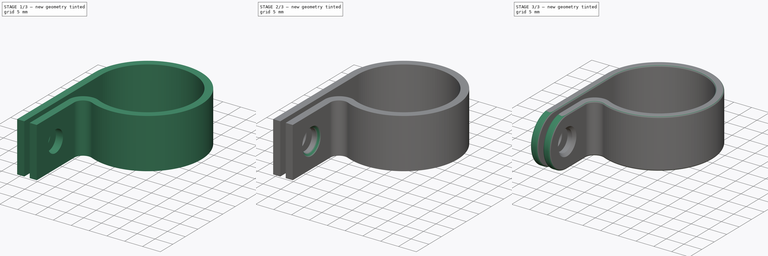
[diagram: build sequence overview — one tinted view per stage of 3, left to right]
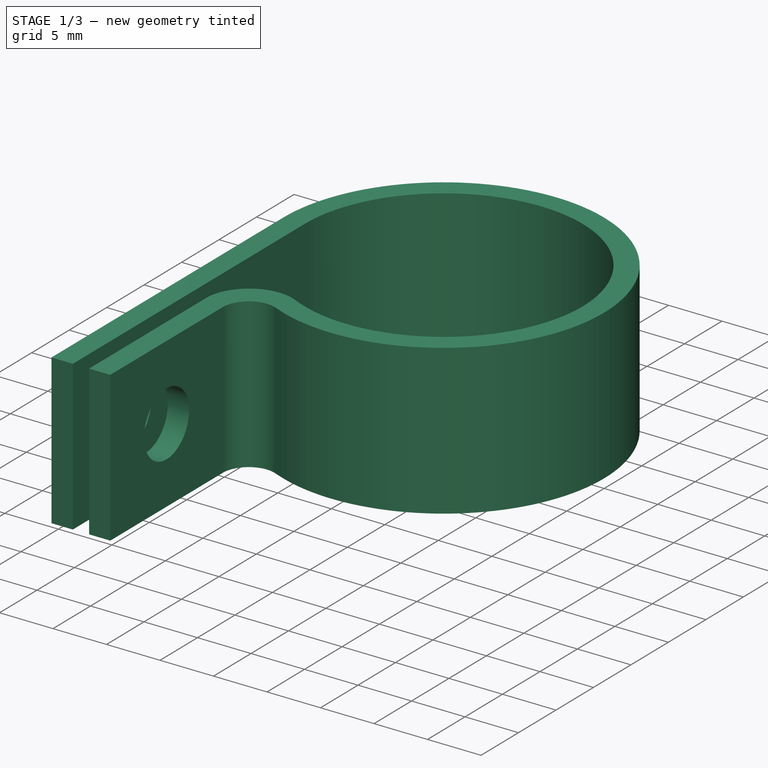
[diagram: stage 1 of 3 — iso view after this stage's code; geometry added in this stage tinted green]
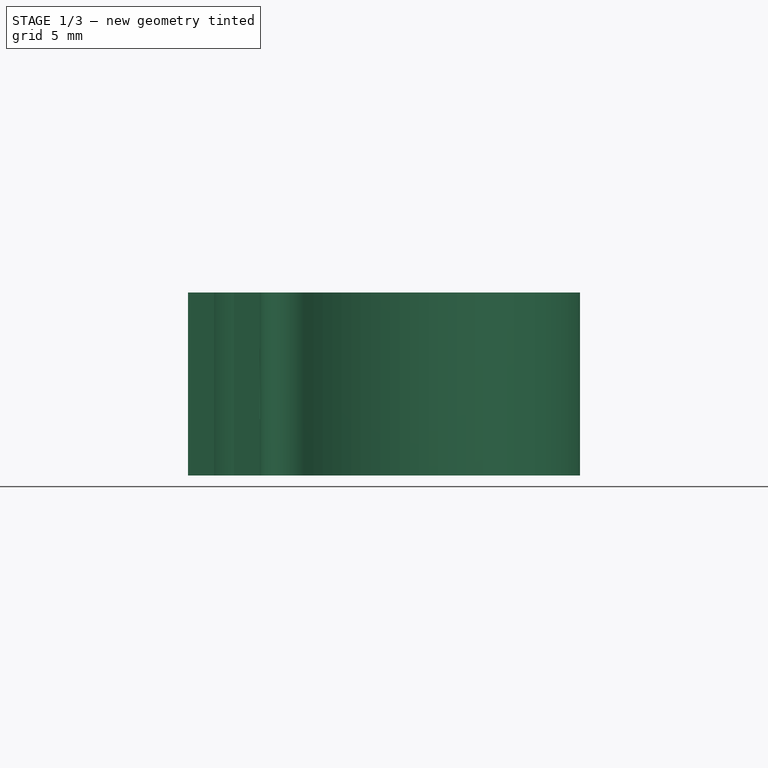
[diagram: stage 1 of 3 — front view after this stage's code; geometry added in this stage tinted green]
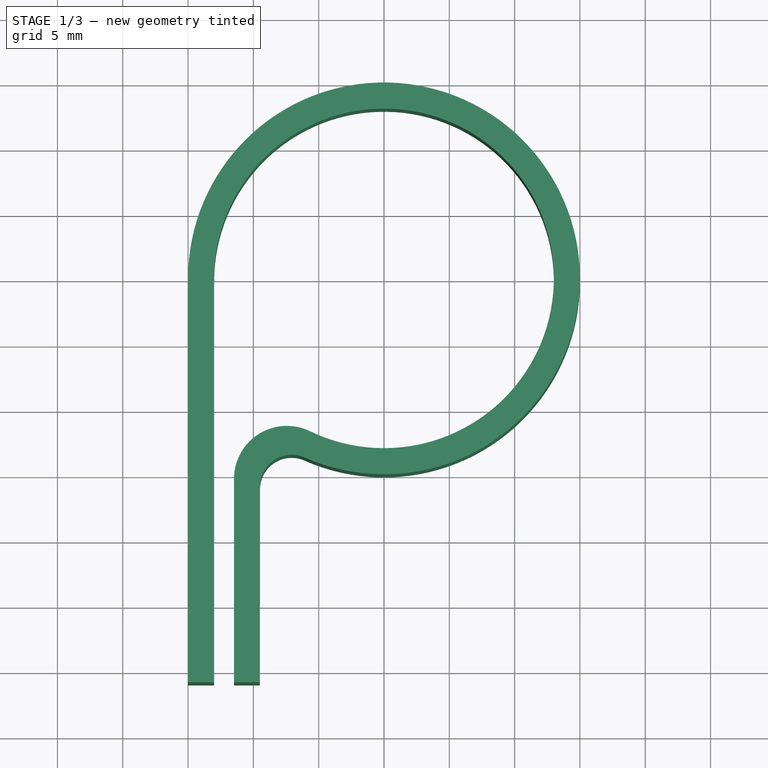
[diagram: stage 1 of 3 — top view after this stage's code; geometry added in this stage tinted green]
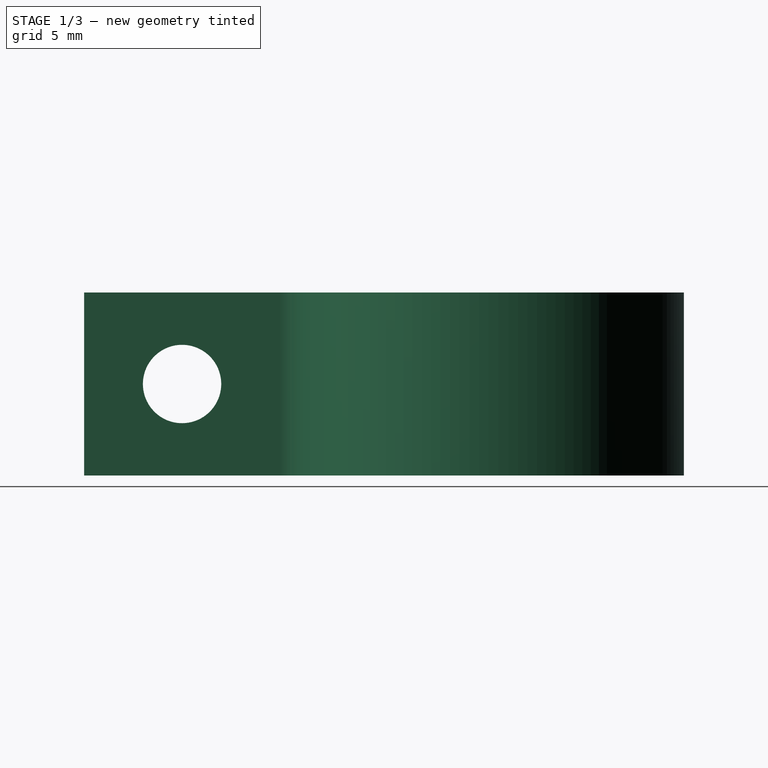
[diagram: stage 1 of 3 — right view after this stage's code; geometry added in this stage tinted green]
FCSTD DOCUMENT  (FreeCAD 1.0R39109 (Git))
Label: SoporteLavadora
License: All rights reserved
LicenseURL: http://en.wikipedia.org/wiki/All_rights_reserved
objects: Sketcher::SketchObject×3, PartDesign::Pad×1, PartDesign::Hole×1, PartDesign::Chamfer×1, PartDesign::Pocket×1, PartDesign::Fillet×1, PartDesign::Body×1
note: 22 computed .brp shape members not serialized (recipe doc carries the construction recipe); baked Part::Feature solids carry a one-line shape summary decoded from their .brp

FEATURE [Sketcher::SketchObject] Sketch
  ArcFitTolerance = 1e-06
  AttachmentSupport = -> [XY_Plane]
  FullyConstrained = false
  MakeInternals = false
  MapMode = 5
  sketch-geometry (10):
    g0: ArcOfCircle CenterX=0 CenterY=0 CenterZ=0 NormalX=0 NormalY=0 NormalZ=1 AngleXU=0 Radius=13 StartAngle=4.2612 EndAngle=9.42478
    g1: ArcOfCircle CenterX=0 CenterY=0 CenterZ=0 NormalX=0 NormalY=0 NormalZ=1 AngleXU=0 Radius=15 StartAngle=4.29479 EndAngle=9.42478
    g2: LineSegment StartX=-11.4832 StartY=-15.343 StartZ=0 EndX=-11.4832 EndY=-30.9254 EndZ=0
    g3: LineSegment StartX=-9.50159 StartY=-30.9254 StartZ=0 EndX=-9.49121 EndY=-15.9254 EndZ=0
    g4: ArcOfCircle CenterX=-7.06679 CenterY=-15.927 CenterZ=0 NormalX=0 NormalY=0 NormalZ=1 AngleXU=0 Radius=2.42442 StartAngle=1.1532 EndAngle=3.1409
    g5: ArcOfCircle CenterX=-7.43406 CenterY=-15.343 CenterZ=0 NormalX=0 NormalY=0 NormalZ=1 AngleXU=0 Radius=4.0491 StartAngle=1.1196 EndAngle=3.14159
    g6: LineSegment StartX=-11.4832 StartY=-30.9254 StartZ=0 EndX=-9.50159 EndY=-30.9254 EndZ=0
    g7: LineSegment StartX=-15 StartY=-5.78689e-07 StartZ=0 EndX=-15 EndY=-30.9254 EndZ=0
    g8: LineSegment StartX=-13 StartY=0 StartZ=0 EndX=-13 EndY=-30.9254 EndZ=0
    g9: LineSegment StartX=-13 StartY=-30.9254 StartZ=0 EndX=-15 EndY=-30.9254 EndZ=0
  constraints (17):
    c: Diameter(g0) = 26
    c: Coincident(g0,g-1)
    c: Diameter(g1) = 30
    c: Coincident(g1,g0)
    c: Tangent(g1,g4) = 1.5708
    c: Tangent(g3,g4) = 1.5708
    c: Tangent(g0,g5) = 1.5708
    c: Tangent(g2,g5) = -1.5708
    c: PointOnObject(g2,g6)
    c: PointOnObject(g6,g2)
    c: Coincident(g6,g3)
    c: Distance(g3) = 15
    c: Horizontal(g6)
    c: Vertical(g7)
    c: Coincident(g7,g1)
    c: Coincident(g9,g7)
    c: Coincident(g9,g8)
FEATURE [PartDesign::Pad] Pad
  Direction = (0,0,1)
  Length = 14
  Length2 = 10
  Profile = -> Sketch
  ReferenceAxis = -> Sketch [N_Axis]
  Suppressed = false
  Type = 0
FEATURE [Sketcher::SketchObject] Sketch001
  ArcFitTolerance = 1e-06
  AttachmentSupport = -> [Pad]
  ExternalGeometry = -> [Pad]
  FullyConstrained = false
  MakeInternals = false
  MapMode = 5
  Placement = pos=(-9.48019,0.00655915,0) rot=(0.577617,0.577217,0.577217;2.094rad)
  sketch-geometry (3):
    g0: LineSegment [constr] StartX=-23.4319 StartY=7 StartZ=0 EndX=-15.9319 EndY=2.3e-15 EndZ=0
    g1: LineSegment [constr] StartX=-23.4319 StartY=7 StartZ=0 EndX=-30.9319 EndY=5e-16 EndZ=0
    g2: Circle CenterX=-23.4319 CenterY=7 CenterZ=0 NormalX=0 NormalY=0 NormalZ=1 AngleXU=0 Radius=2.5
  constraints (5):
    c: Coincident(g0,g-6)
    c: Coincident(g1,g-6)
    c: Coincident(g1,g0)
    c: Diameter(g2) = 5
    c: Coincident(g2,g0)
FEATURE [PartDesign::Hole] Hole
  BaseFeature = -> Pad
  CustomThreadClearance = 0
  Depth = 25
  DepthType = 0
  Diameter = 6
  DrillForDepth = false
  DrillPoint = 1
  DrillPointAngle = 118
  HoleCutCountersinkAngle = 90
  HoleCutCustomValues = false
  HoleCutDepth = 0
  HoleCutDiameter = 6.1
  HoleCutType = 0
  ModelThread = false
  Profile = -> Sketch001
  Suppressed = false
  Tapered = false
  TaperedAngle = 90
  ThreadClass = 0
  ThreadDepth = 25
  ThreadDepthType = 0
  ThreadDirection = 0
  ThreadFit = 0
  ThreadSize = 0
  ThreadType = 0
  Threaded = false
  UseCustomThreadClearance = false
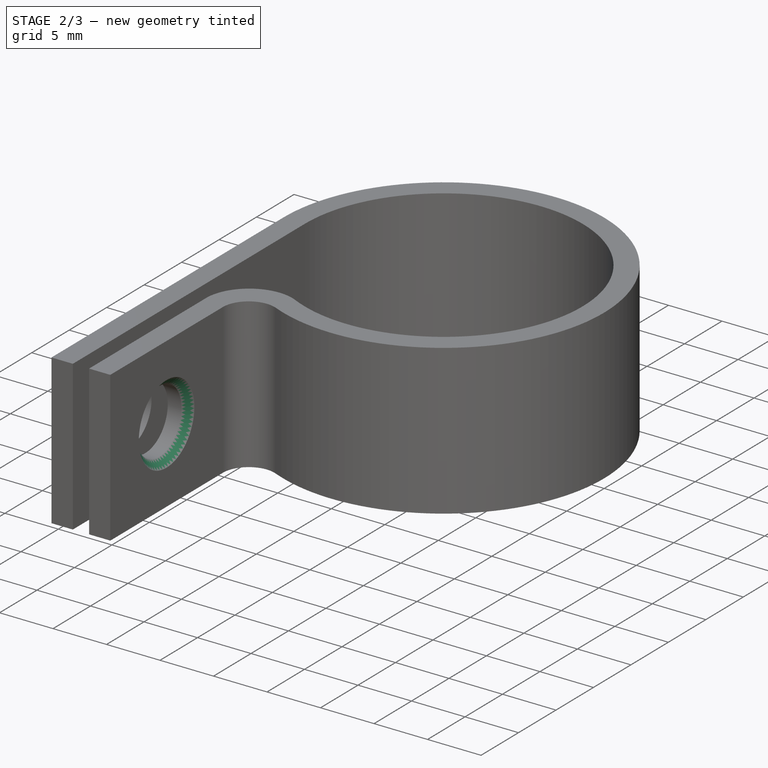
[diagram: stage 2 of 3 — iso view after this stage's code; geometry added in this stage tinted green]
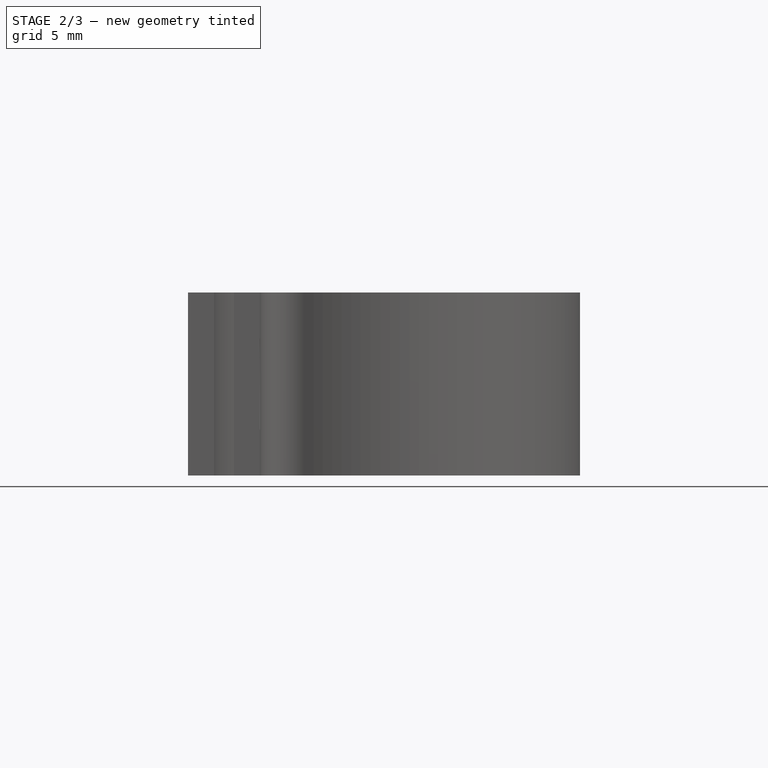
[diagram: stage 2 of 3 — front view after this stage's code; geometry added in this stage tinted green]
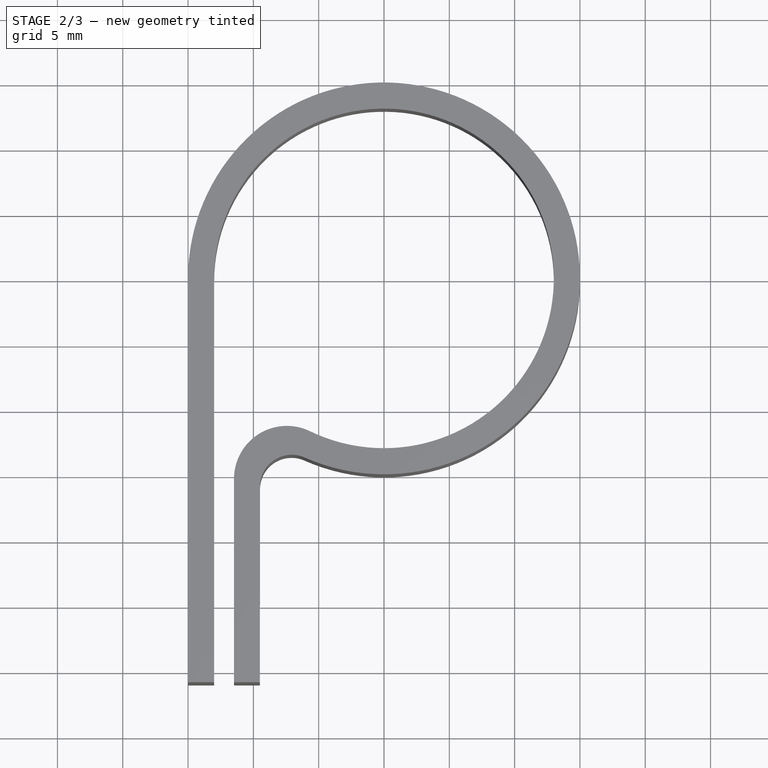
[diagram: stage 2 of 3 — top view after this stage's code; geometry added in this stage tinted green]
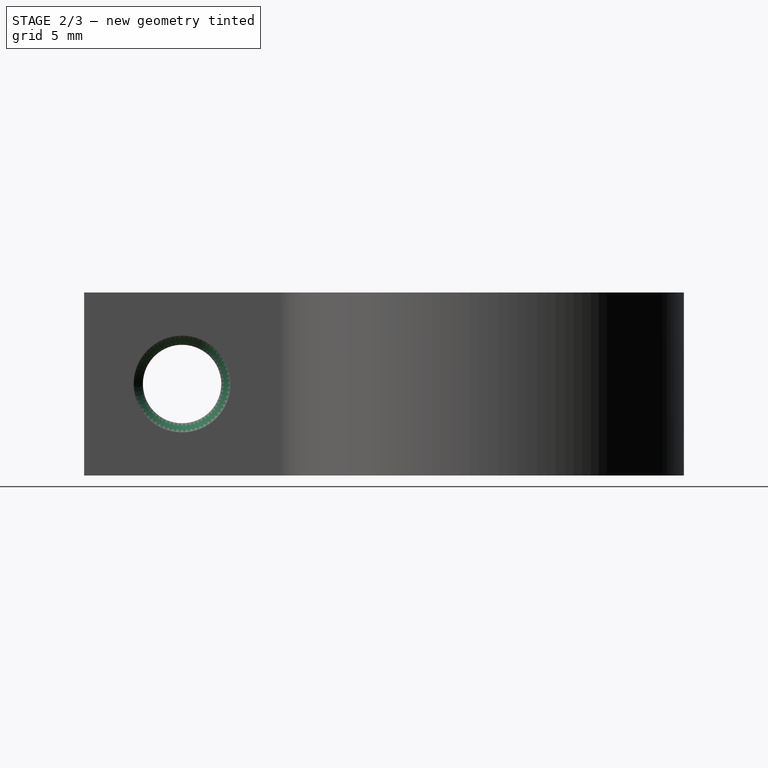
[diagram: stage 2 of 3 — right view after this stage's code; geometry added in this stage tinted green]
FEATURE [PartDesign::Chamfer] Chamfer
  Angle = 45
  Base = -> Hole [Edge30]
  BaseFeature = -> Hole
  ChamferType = 0
  FlipDirection = false
  Size = 0.7
  Size2 = 1
  SupportTransform = false
  Suppressed = false
  UseAllEdges = false
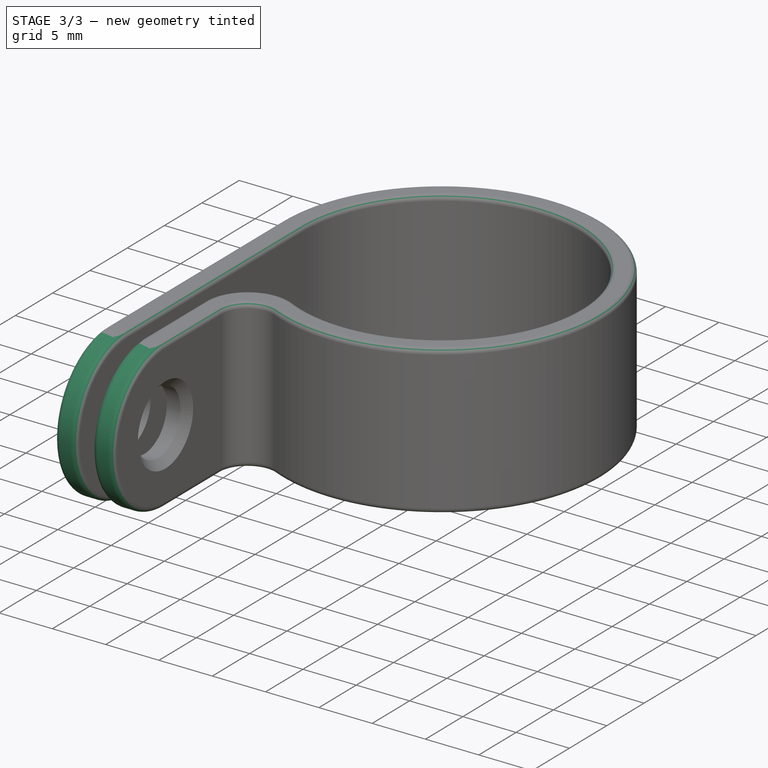
[diagram: stage 3 of 3 — iso view after this stage's code; geometry added in this stage tinted green]
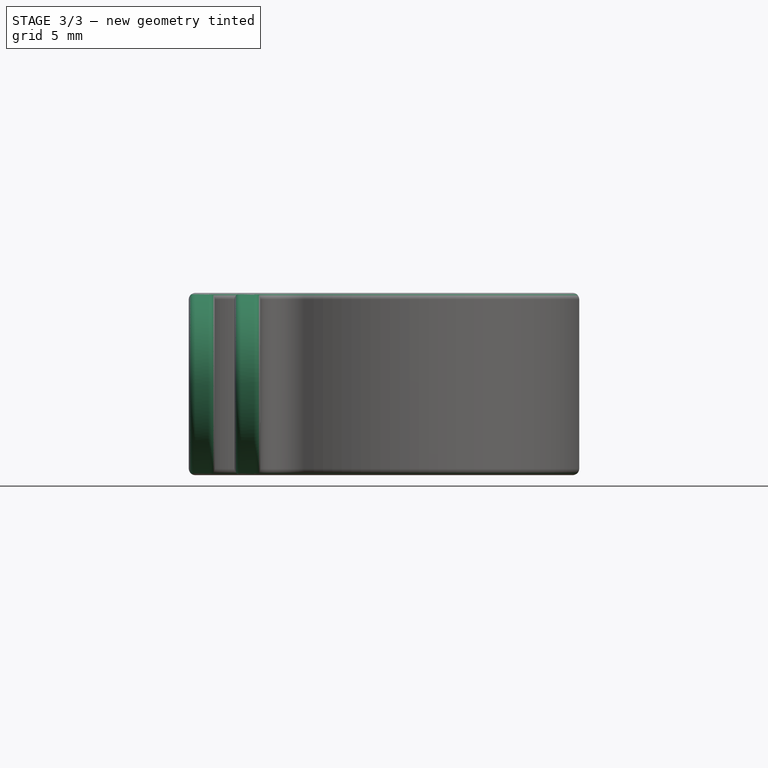
[diagram: stage 3 of 3 — front view after this stage's code; geometry added in this stage tinted green]
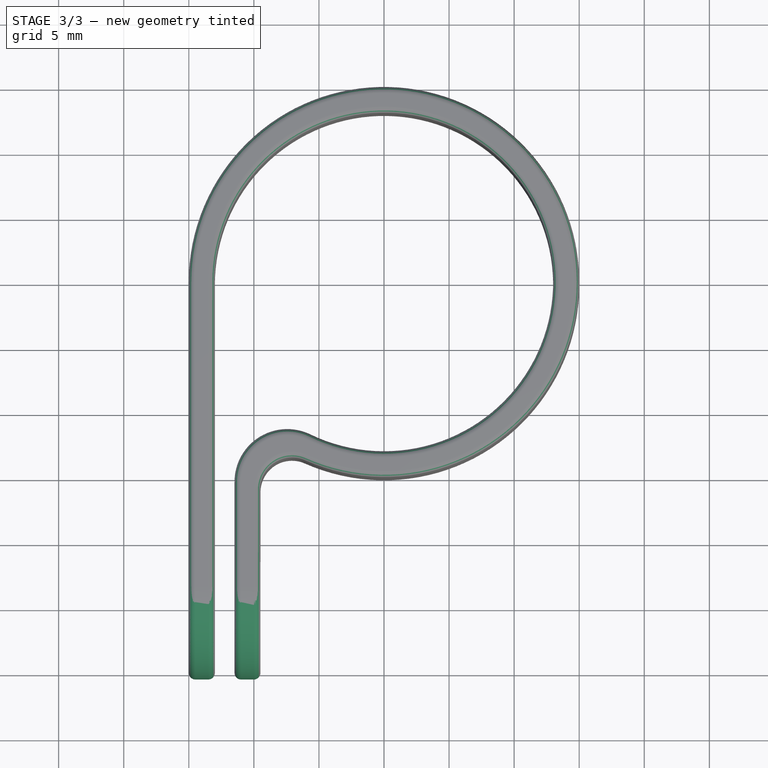
[diagram: stage 3 of 3 — top view after this stage's code; geometry added in this stage tinted green]
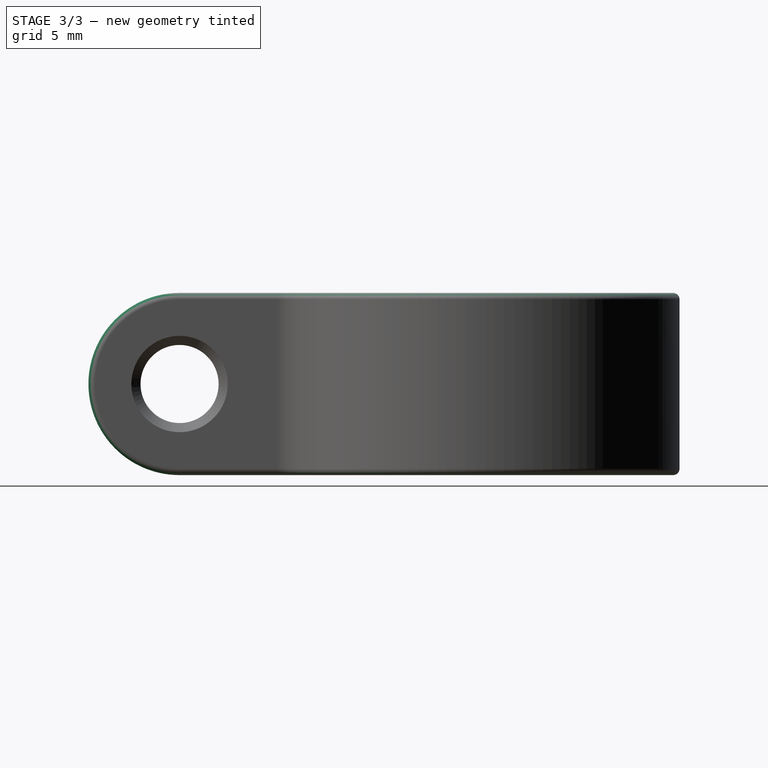
[diagram: stage 3 of 3 — right view after this stage's code; geometry added in this stage tinted green]
FEATURE [Sketcher::SketchObject] Sketch002
  ArcFitTolerance = 1e-06
  AttachmentSupport = -> [Chamfer]
  ExternalGeometry = -> [Chamfer]
  FullyConstrained = true
  MakeInternals = false
  MapMode = 5
  Placement = pos=(-9.48019,0.00655915,0) rot=(0.577617,0.577217,0.577217;2.094rad)
  sketch-geometry (4):
    g0: ArcOfCircle CenterX=-23.4319 CenterY=7 CenterZ=0 NormalX=0 NormalY=0 NormalZ=1 AngleXU=0 Radius=7 StartAngle=1.5708 EndAngle=4.71239
    g1: LineSegment StartX=-23.432 StartY=14 StartZ=0 EndX=-30.9319 EndY=14 EndZ=0
    g2: LineSegment StartX=-30.9319 StartY=-3.6e-15 StartZ=0 EndX=-30.9319 EndY=14 EndZ=0
    g3: LineSegment StartX=-30.9319 StartY=-3.6e-15 StartZ=0 EndX=-23.4319 EndY=-3.6e-15 EndZ=0
  constraints (9):
    c: Coincident(g0,g-3)
    c: Coincident(g1,g0)
    c: Coincident(g1,g-5)
    c: Horizontal(g1)
    c: Coincident(g2,g-6)
    c: Coincident(g2,g1)
    c: Coincident(g3,g2)
    c: Tangent(g3,g0) = -1.5708
    c: Horizontal(g3)
FEATURE [PartDesign::Pocket] Pocket
  BaseFeature = -> Chamfer
  Direction = (-1,0.00069188,-1e-16)
  Length = 6
  Length2 = 5
  Profile = -> Sketch002
  ReferenceAxis = -> Sketch002 [N_Axis]
  Suppressed = false
  Type = 0
FEATURE [PartDesign::Fillet] Fillet
  Base = -> Pocket [Edge27,Edge28,Edge12,Edge13,Edge10,Edge19,Edge18,Edge17,Edge35,Edge26,Edge14,Edge21,Edge6,Edge7,Edge33,Edge15,Edge8,Edge29,Edge23,Edge24]
  BaseFeature = -> Pocket
  Radius = 0.5
  SupportTransform = false
  Suppressed = false
  UseAllEdges = false
FEATURE [PartDesign::Body] Body
  AllowCompound = false
  Group = -> [Sketch,Pad,Sketch001,Hole,Chamfer,Sketch002,Pocket,Fillet]
  Origin = -> Origin
  Tip = -> Fillet
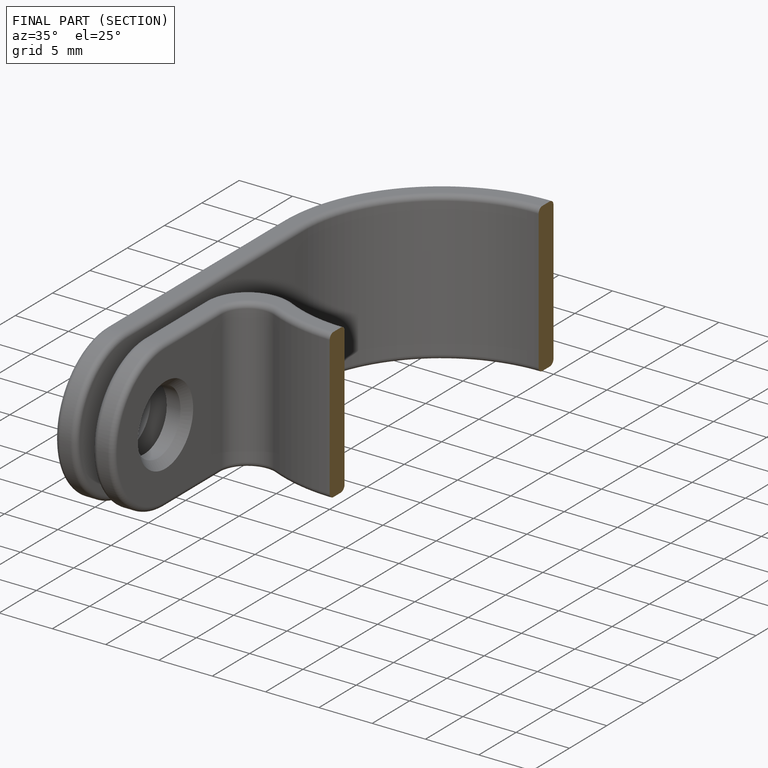
[diagram: finished part — half-section view (interior)]
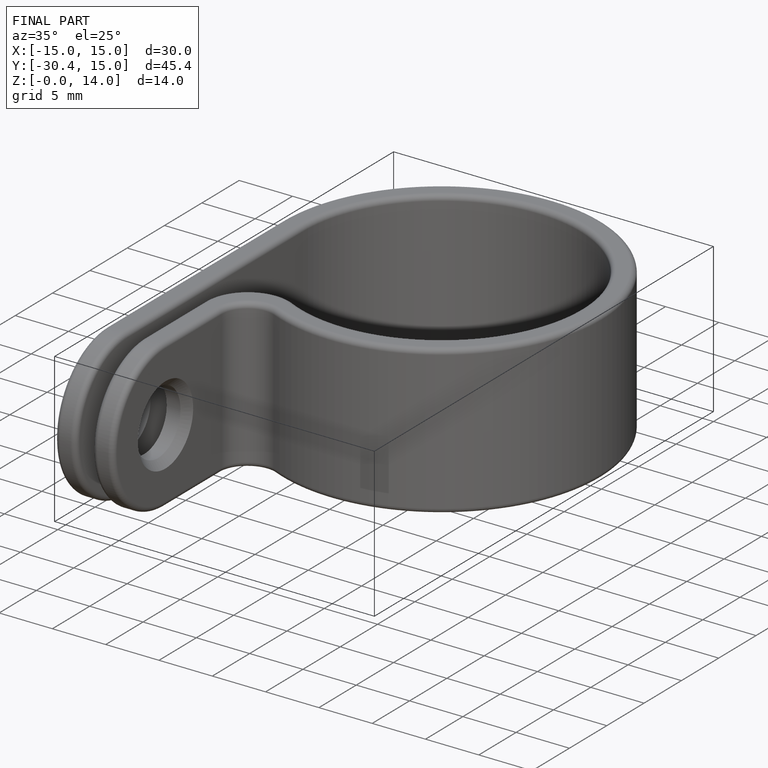
[diagram: finished part — iso view with bounding-box wireframe]
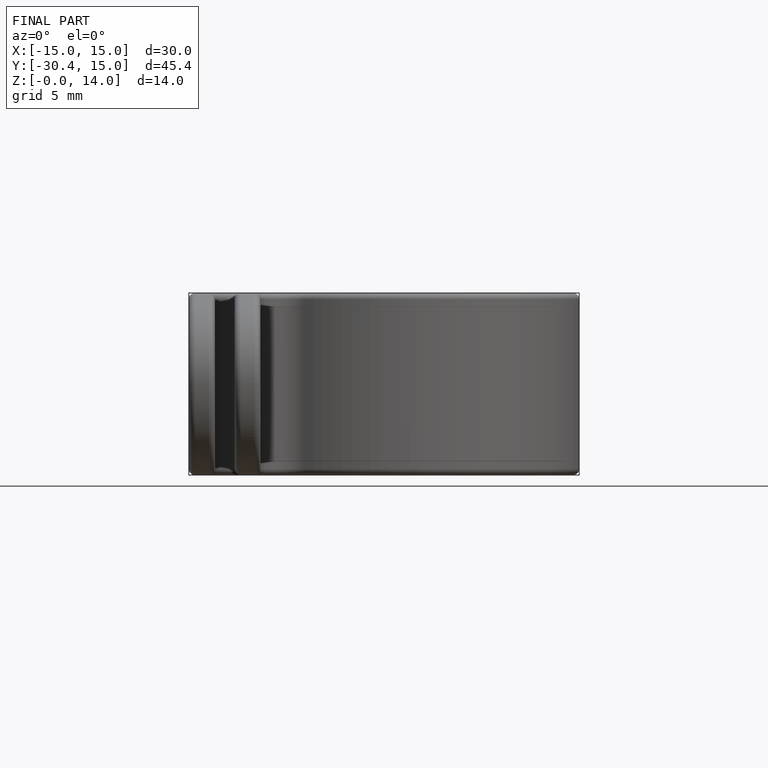
[diagram: finished part — front view with bounding-box wireframe]
